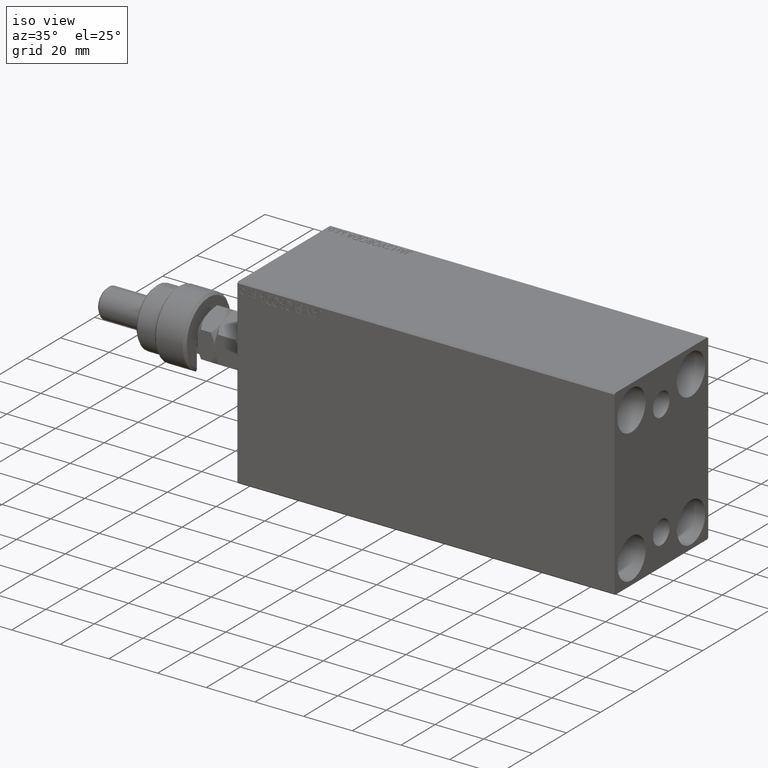
[diagram: clean part render]
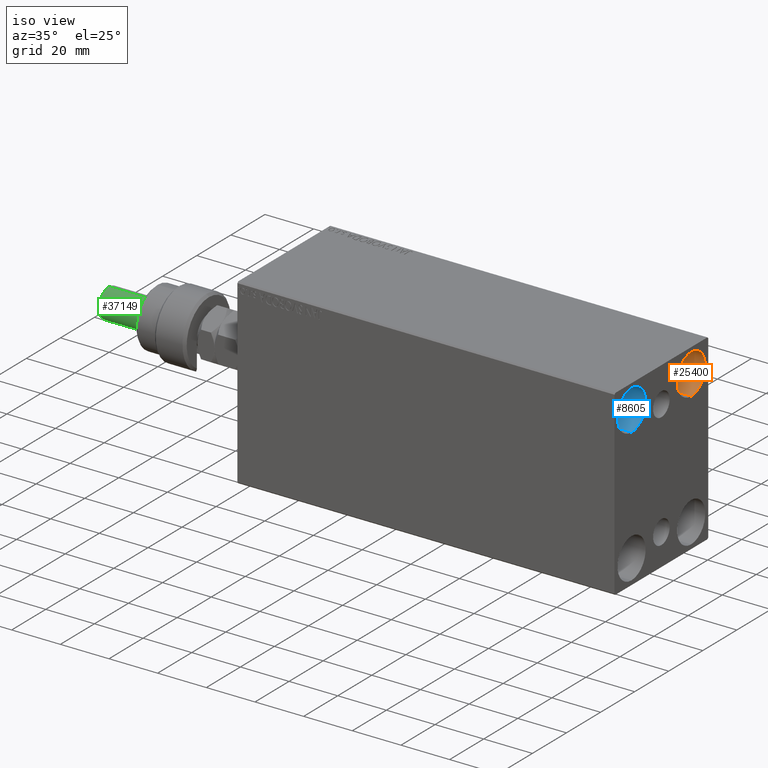
[diagram: same view with three faces highlighted in distinct colors, each labeled with its STEP entity id]
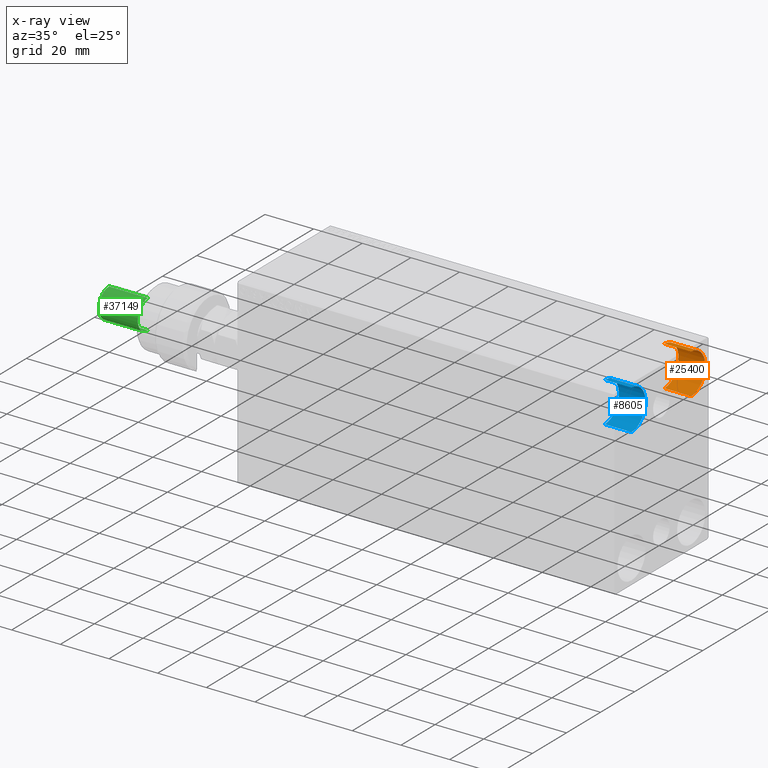
[diagram: x-ray of the same camera — body ghosted, the three highlighted faces saturated]
A machine part, iso view with three faces highlighted in distinct colors.
The next image is the same camera in x-ray (body ghosted, the three faces saturated) — at least one of them is partly hidden behind the body in this view.
Their STEP definitions:

[orange] entity #25400 — the highlighted cylindrical surface (edge-blend (fillet) strip) has radius 8.25 mm, axis along (1, 0, 0).
#128 = EDGE_CURVE ( 'NONE', #42378, #26424, #11523, .T. ) ;
#2792 = CARTESIAN_POINT ( 'NONE',  ( 144.0000000000000000, 17.50000000000000355, 19.25000000000000000 ) ) ;
#2800 = DIRECTION ( 'NONE',  ( 0.000000000000000000, 0.000000000000000000, -1.000000000000000000 ) ) ;
#4503 = CARTESIAN_POINT ( 'NONE',  ( 144.0000000000000000, 17.50000000000000355, 35.74999999999999289 ) ) ;
#5009 = ORIENTED_EDGE ( 'NONE', *, *, #128, .F. ) ;
#7210 = CARTESIAN_POINT ( 'NONE',  ( 155.0000000000000000, 17.50000000000000355, 27.49999999999999645 ) ) ;
#8868 = AXIS2_PLACEMENT_3D ( 'NONE', #7210, #38674, #42420 ) ;
#11523 = LINE ( 'NONE', #25821, #17304 ) ;
#12573 = AXIS2_PLACEMENT_3D ( 'NONE', #31416, #38920, #2800 ) ;
#13648 = CARTESIAN_POINT ( 'NONE',  ( 144.0000000000000000, 17.50000000000000355, 19.25000000000000000 ) ) ;
#14028 = EDGE_CURVE ( 'NONE', #30170, #26930, #18439, .T. ) ;
#14403 = CARTESIAN_POINT ( 'NONE',  ( 144.0000000000000000, 17.50000000000000355, 27.49999999999999645 ) ) ;
#15712 = AXIS2_PLACEMENT_3D ( 'NONE', #14403, #35979, #32919 ) ;
#17304 = VECTOR ( 'NONE', #40131, 1000.000000000000000 ) ;
#18439 = LINE ( 'NONE', #2792, #19877 ) ;
#19877 = VECTOR ( 'NONE', #32742, 1000.000000000000000 ) ;
#20404 = CYLINDRICAL_SURFACE ( 'NONE', #12573, 8.249999999999996447 ) ;
#20587 = ORIENTED_EDGE ( 'NONE', *, *, #14028, .T. ) ;
#22371 = CIRCLE ( 'NONE', #8868, 8.249999999999992895 ) ;
#22470 = CIRCLE ( 'NONE', #15712, 8.249999999999992895 ) ;
#25400 = ADVANCED_FACE ( 'NONE', ( #27205 ), #20404, .F. ) ;
#25821 = CARTESIAN_POINT ( 'NONE',  ( 144.0000000000000000, 17.50000000000000355, 35.74999999999999289 ) ) ;
#26424 = VERTEX_POINT ( 'NONE', #33490 ) ;
#26930 = VERTEX_POINT ( 'NONE', #33321 ) ;
#27048 = EDGE_CURVE ( 'NONE', #26424, #26930, #22371, .T. ) ;
#27205 = FACE_OUTER_BOUND ( 'NONE', #39329, .T. ) ;
#28138 = ORIENTED_EDGE ( 'NONE', *, *, #34412, .T. ) ;
#30170 = VERTEX_POINT ( 'NONE', #13648 ) ;
#31416 = CARTESIAN_POINT ( 'NONE',  ( 144.0000000000000000, 17.50000000000000355, 27.49999999999999645 ) ) ;
#32742 = DIRECTION ( 'NONE',  ( 1.000000000000000000, -0.000000000000000000, -0.000000000000000000 ) ) ;
#32919 = DIRECTION ( 'NONE',  ( 0.000000000000000000, 0.000000000000000000, 1.000000000000000000 ) ) ;
#33321 = CARTESIAN_POINT ( 'NONE',  ( 155.0000000000000000, 17.50000000000000355, 19.25000000000000000 ) ) ;
#33490 = CARTESIAN_POINT ( 'NONE',  ( 155.0000000000000000, 17.50000000000000355, 35.74999999999999289 ) ) ;
#34412 = EDGE_CURVE ( 'NONE', #42378, #30170, #22470, .T. ) ;
#35979 = DIRECTION ( 'NONE',  ( -1.000000000000000000, -0.000000000000000000, -0.000000000000000000 ) ) ;
#36216 = ORIENTED_EDGE ( 'NONE', *, *, #27048, .F. ) ;
#38674 = DIRECTION ( 'NONE',  ( -1.000000000000000000, -0.000000000000000000, -0.000000000000000000 ) ) ;
#38920 = DIRECTION ( 'NONE',  ( 1.000000000000000000, -0.000000000000000000, -0.000000000000000000 ) ) ;
#39329 = EDGE_LOOP ( 'NONE', ( #5009, #28138, #20587, #36216 ) ) ;
#40131 = DIRECTION ( 'NONE',  ( 1.000000000000000000, -0.000000000000000000, -0.000000000000000000 ) ) ;
#42378 = VERTEX_POINT ( 'NONE', #4503 ) ;
#42420 = DIRECTION ( 'NONE',  ( 0.000000000000000000, 0.000000000000000000, 1.000000000000000000 ) ) ;

[blue] entity #8605 — the highlighted cylindrical surface (edge-blend (fillet) strip) has radius 8.25 mm, axis along (1, 0, 0).
#6120 = CARTESIAN_POINT ( 'NONE',  ( 144.0000000000000000, -17.49999999999999645, 27.49999999999999645 ) ) ;
#6289 = EDGE_CURVE ( 'NONE', #29525, #15267, #34945, .T. ) ;
#7492 = FACE_OUTER_BOUND ( 'NONE', #22899, .T. ) ;
#8605 = ADVANCED_FACE ( 'NONE', ( #7492 ), #32116, .F. ) ;
#9637 = AXIS2_PLACEMENT_3D ( 'NONE', #24807, #39571, #39125 ) ;
#9805 = ORIENTED_EDGE ( 'NONE', *, *, #32230, .F. ) ;
#13530 = CARTESIAN_POINT ( 'NONE',  ( 144.0000000000000000, -17.49999999999999645, 35.74999999999999289 ) ) ;
#14075 = DIRECTION ( 'NONE',  ( 0.000000000000000000, 0.000000000000000000, -1.000000000000000000 ) ) ;
#14186 = CARTESIAN_POINT ( 'NONE',  ( 144.0000000000000000, -17.49999999999999645, 19.25000000000000000 ) ) ;
#15267 = VERTEX_POINT ( 'NONE', #37175 ) ;
#15464 = ORIENTED_EDGE ( 'NONE', *, *, #6289, .F. ) ;
#18479 = CARTESIAN_POINT ( 'NONE',  ( 144.0000000000000000, -17.49999999999999645, 19.25000000000000000 ) ) ;
#18527 = DIRECTION ( 'NONE',  ( 1.000000000000000000, -0.000000000000000000, -0.000000000000000000 ) ) ;
#18657 = CIRCLE ( 'NONE', #9637, 8.249999999999992895 ) ;
#18831 = ORIENTED_EDGE ( 'NONE', *, *, #42561, .T. ) ;
#21609 = VECTOR ( 'NONE', #46157, 1000.000000000000000 ) ;
#22899 = EDGE_LOOP ( 'NONE', ( #15464, #18831, #33143, #9805 ) ) ;
#23256 = CIRCLE ( 'NONE', #25535, 8.249999999999992895 ) ;
#23477 = DIRECTION ( 'NONE',  ( -1.000000000000000000, -0.000000000000000000, -0.000000000000000000 ) ) ;
#24807 = CARTESIAN_POINT ( 'NONE',  ( 155.0000000000000000, -17.49999999999999645, 27.49999999999999645 ) ) ;
#25535 = AXIS2_PLACEMENT_3D ( 'NONE', #6120, #23477, #27693 ) ;
#27693 = DIRECTION ( 'NONE',  ( 0.000000000000000000, 0.000000000000000000, 1.000000000000000000 ) ) ;
#29039 = DIRECTION ( 'NONE',  ( 1.000000000000000000, -0.000000000000000000, -0.000000000000000000 ) ) ;
#29525 = VERTEX_POINT ( 'NONE', #13530 ) ;
#30976 = VERTEX_POINT ( 'NONE', #31933 ) ;
#31933 = CARTESIAN_POINT ( 'NONE',  ( 155.0000000000000000, -17.49999999999999645, 19.25000000000000000 ) ) ;
#32116 = CYLINDRICAL_SURFACE ( 'NONE', #39155, 8.249999999999996447 ) ;
#32230 = EDGE_CURVE ( 'NONE', #15267, #30976, #18657, .T. ) ;
#32283 = EDGE_CURVE ( 'NONE', #37055, #30976, #42634, .T. ) ;
#32358 = CARTESIAN_POINT ( 'NONE',  ( 144.0000000000000000, -17.49999999999999645, 27.49999999999999645 ) ) ;
#33143 = ORIENTED_EDGE ( 'NONE', *, *, #32283, .T. ) ;
#34945 = LINE ( 'NONE', #41979, #44531 ) ;
#37055 = VERTEX_POINT ( 'NONE', #14186 ) ;
#37175 = CARTESIAN_POINT ( 'NONE',  ( 155.0000000000000000, -17.49999999999999645, 35.74999999999999289 ) ) ;
#39125 = DIRECTION ( 'NONE',  ( 0.000000000000000000, 0.000000000000000000, 1.000000000000000000 ) ) ;
#39155 = AXIS2_PLACEMENT_3D ( 'NONE', #32358, #18527, #14075 ) ;
#39571 = DIRECTION ( 'NONE',  ( -1.000000000000000000, -0.000000000000000000, -0.000000000000000000 ) ) ;
#41979 = CARTESIAN_POINT ( 'NONE',  ( 144.0000000000000000, -17.49999999999999645, 35.74999999999999289 ) ) ;
#42561 = EDGE_CURVE ( 'NONE', #29525, #37055, #23256, .T. ) ;
#42634 = LINE ( 'NONE', #18479, #21609 ) ;
#44531 = VECTOR ( 'NONE', #29039, 1000.000000000000000 ) ;
#46157 = DIRECTION ( 'NONE',  ( 1.000000000000000000, -0.000000000000000000, -0.000000000000000000 ) ) ;

[green] entity #37149 — the highlighted cylindrical surface (edge-blend (fillet) strip) has radius 6 mm, axis along (1, -0, -0).
#166 = CARTESIAN_POINT ( 'NONE',  ( -6.000000000000000888, 0.000000000000000000, 41.99999999999999289 ) ) ;
#4318 = ORIENTED_EDGE ( 'NONE', *, *, #45749, .F. ) ;
#4565 = DIRECTION ( 'NONE',  ( -1.000000000000000000, 0.000000000000000000, 0.000000000000000000 ) ) ;
#6677 = CIRCLE ( 'NONE', #16436, 6.000000000000000888 ) ;
#8532 = CARTESIAN_POINT ( 'NONE',  ( 0.000000000000000000, 0.000000000000000000, 41.99999999999999289 ) ) ;
#8718 = DIRECTION ( 'NONE',  ( 1.000000000000000000, 0.000000000000000000, 0.000000000000000000 ) ) ;
#9266 = DIRECTION ( 'NONE',  ( -0.000000000000000000, -0.000000000000000000, -1.000000000000000000 ) ) ;
#12152 = AXIS2_PLACEMENT_3D ( 'NONE', #8532, #40441, #4565 ) ;
#12798 = CARTESIAN_POINT ( 'NONE',  ( 6.000000000000000888, 7.347880794884120722E-16, 41.99999999999999289 ) ) ;
#14213 = VECTOR ( 'NONE', #18240, 1000.000000000000000 ) ;
#15126 = FACE_OUTER_BOUND ( 'NONE', #25972, .T. ) ;
#16099 = ORIENTED_EDGE ( 'NONE', *, *, #37963, .T. ) ;
#16436 = AXIS2_PLACEMENT_3D ( 'NONE', #44432, #33884, #19793 ) ;
#18102 = VERTEX_POINT ( 'NONE', #27424 ) ;
#18240 = DIRECTION ( 'NONE',  ( -0.000000000000000000, -0.000000000000000000, -1.000000000000000000 ) ) ;
#19067 = DIRECTION ( 'NONE',  ( 0.000000000000000000, 0.000000000000000000, -1.000000000000000000 ) ) ;
#19509 = ORIENTED_EDGE ( 'NONE', *, *, #39322, .T. ) ;
#19793 = DIRECTION ( 'NONE',  ( 1.000000000000000000, 0.000000000000000000, 0.000000000000000000 ) ) ;
#20807 = VERTEX_POINT ( 'NONE', #29103 ) ;
#22519 = VECTOR ( 'NONE', #9266, 1000.000000000000000 ) ;
#22823 = ORIENTED_EDGE ( 'NONE', *, *, #43023, .T. ) ;
#24494 = CARTESIAN_POINT ( 'NONE',  ( 6.000000000000000888, 7.347880794884120722E-16, 40.99999999999997868 ) ) ;
#24686 = AXIS2_PLACEMENT_3D ( 'NONE', #36900, #19067, #8718 ) ;
#25266 = LINE ( 'NONE', #166, #14213 ) ;
#25972 = EDGE_LOOP ( 'NONE', ( #4318, #19509, #22823, #16099 ) ) ;
#27424 = CARTESIAN_POINT ( 'NONE',  ( -6.000000000000000888, 0.000000000000000000, 40.99999999999997868 ) ) ;
#29103 = CARTESIAN_POINT ( 'NONE',  ( 6.000000000000000888, 7.347880794884120722E-16, 24.99999999999999645 ) ) ;
#29213 = CARTESIAN_POINT ( 'NONE',  ( -6.000000000000000888, 0.000000000000000000, 24.99999999999999645 ) ) ;
#29921 = LINE ( 'NONE', #12798, #22519 ) ;
#30647 = VERTEX_POINT ( 'NONE', #24494 ) ;
#33884 = DIRECTION ( 'NONE',  ( -0.000000000000000000, -0.000000000000000000, 1.000000000000000000 ) ) ;
#36900 = CARTESIAN_POINT ( 'NONE',  ( 0.000000000000000000, 0.000000000000000000, 40.99999999999997868 ) ) ;
#37149 = ADVANCED_FACE ( 'NONE', ( #15126 ), #44658, .T. ) ;
#37963 = EDGE_CURVE ( 'NONE', #44953, #20807, #6677, .T. ) ;
#39322 = EDGE_CURVE ( 'NONE', #30647, #18102, #45696, .T. ) ;
#40441 = DIRECTION ( 'NONE',  ( -0.000000000000000000, -0.000000000000000000, -1.000000000000000000 ) ) ;
#43023 = EDGE_CURVE ( 'NONE', #18102, #44953, #25266, .T. ) ;
#44432 = CARTESIAN_POINT ( 'NONE',  ( 0.000000000000000000, 0.000000000000000000, 24.99999999999999645 ) ) ;
#44658 = CYLINDRICAL_SURFACE ( 'NONE', #12152, 6.000000000000000888 ) ;
#44953 = VERTEX_POINT ( 'NONE', #29213 ) ;
#45696 = CIRCLE ( 'NONE', #24686, 6.000000000000000888 ) ;
#45749 = EDGE_CURVE ( 'NONE', #30647, #20807, #29921, .T. ) ;